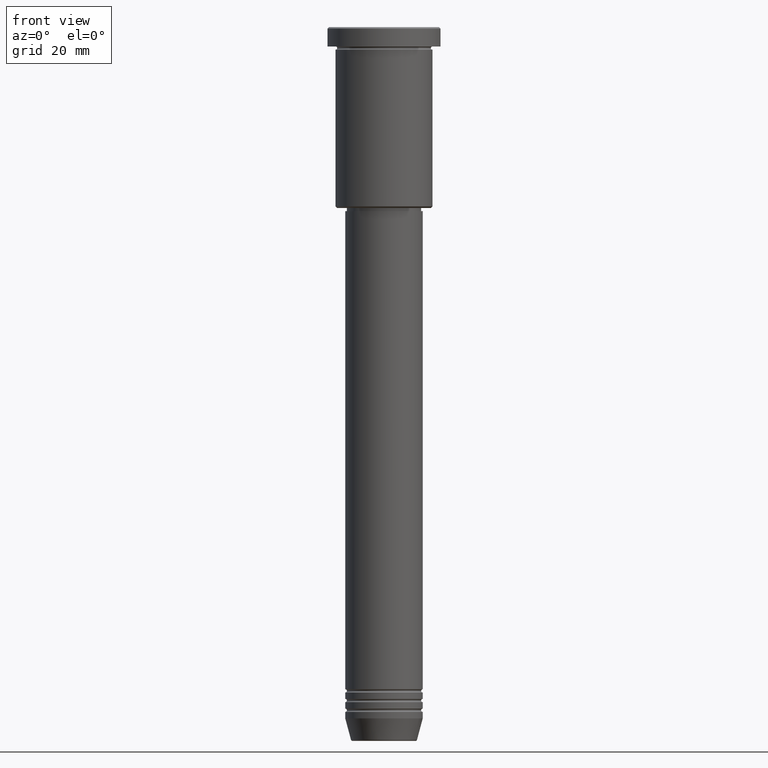
[diagram: clean part render]
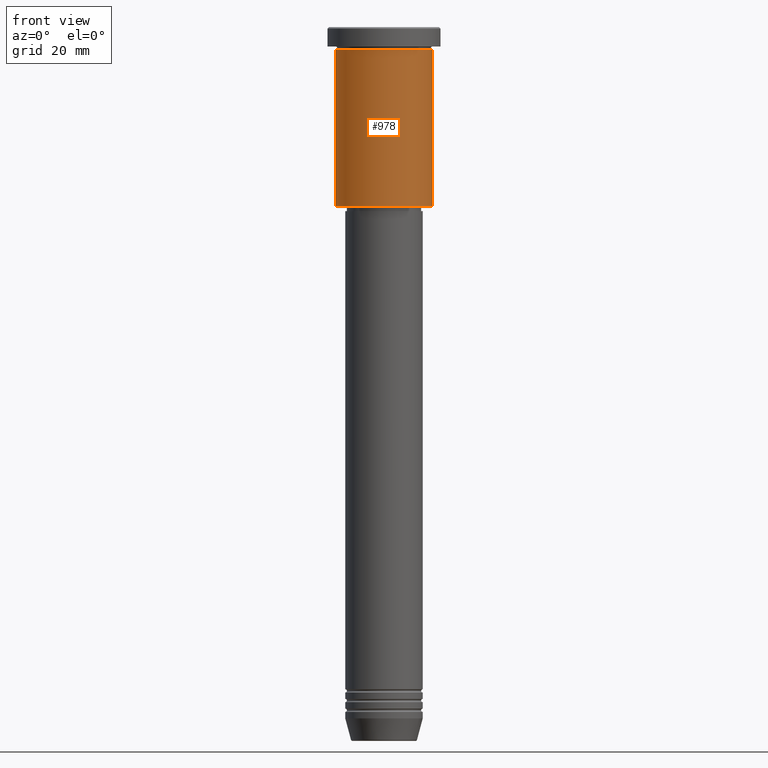
[diagram: same view with one face highlighted and labeled with its STEP entity id]
A machine part, front view. The second image highlights one B-rep face of the part: STEP entity #978.
In plain terms, the highlighted cylindrical surface (partial cylindrical patch) has radius 15 mm, axis along (-0, -0, 1).
Its self-contained STEP definition (entity closure, byte-faithful):
#2 = EDGE_LOOP ( 'NONE', ( #1108, #4, #989, #482 ) ) ;
#4 = ORIENTED_EDGE ( 'NONE', *, *, #1025, .T. ) ;
#18 = VERTEX_POINT ( 'NONE', #687 ) ;
#22 = CARTESIAN_POINT ( 'NONE',  ( -15.00000000000000000, 1.836970198721029589E-15, -6.999999999999995559 ) ) ;
#92 = AXIS2_PLACEMENT_3D ( 'NONE', #1014, #1106, #460 ) ;
#118 = CARTESIAN_POINT ( 'NONE',  ( 0.000000000000000000, 0.000000000000000000, -6.999999999999995559 ) ) ;
#257 = VECTOR ( 'NONE', #696, 1000.000000000000000 ) ;
#332 = CARTESIAN_POINT ( 'NONE',  ( 15.00000000000000000, 0.000000000000000000, 0.000000000000000000 ) ) ;
#364 = VECTOR ( 'NONE', #631, 1000.000000000000000 ) ;
#460 = DIRECTION ( 'NONE',  ( -1.000000000000000000, 0.000000000000000000, 0.000000000000000000 ) ) ;
#470 = CIRCLE ( 'NONE', #92, 15.00000000000000000 ) ;
#471 = EDGE_CURVE ( 'NONE', #18, #1107, #994, .T. ) ;
#480 = DIRECTION ( 'NONE',  ( -0.000000000000000000, -0.000000000000000000, 1.000000000000000000 ) ) ;
#482 = ORIENTED_EDGE ( 'NONE', *, *, #652, .F. ) ;
#518 = DIRECTION ( 'NONE',  ( 1.000000000000000000, 0.000000000000000000, 0.000000000000000000 ) ) ;
#547 = AXIS2_PLACEMENT_3D ( 'NONE', #118, #480, #1027 ) ;
#594 = LINE ( 'NONE', #332, #257 ) ;
#604 = CIRCLE ( 'NONE', #547, 15.00000000000000000 ) ;
#631 = DIRECTION ( 'NONE',  ( -0.000000000000000000, -0.000000000000000000, 1.000000000000000000 ) ) ;
#651 = CARTESIAN_POINT ( 'NONE',  ( 15.00000000000000000, 0.000000000000000000, -55.50000000000000711 ) ) ;
#652 = EDGE_CURVE ( 'NONE', #1107, #1153, #604, .T. ) ;
#687 = CARTESIAN_POINT ( 'NONE',  ( -15.00000000000000000, 1.836970198721029589E-15, -55.50000000000000711 ) ) ;
#696 = DIRECTION ( 'NONE',  ( -0.000000000000000000, -0.000000000000000000, 1.000000000000000000 ) ) ;
#702 = CARTESIAN_POINT ( 'NONE',  ( -15.00000000000000000, 1.836970198721029589E-15, 0.000000000000000000 ) ) ;
#713 = CYLINDRICAL_SURFACE ( 'NONE', #1022, 15.00000000000000000 ) ;
#718 = DIRECTION ( 'NONE',  ( -0.000000000000000000, -0.000000000000000000, 1.000000000000000000 ) ) ;
#857 = EDGE_CURVE ( 'NONE', #1033, #1153, #594, .T. ) ;
#978 = ADVANCED_FACE ( 'NONE', ( #1158 ), #713, .T. ) ;
#989 = ORIENTED_EDGE ( 'NONE', *, *, #857, .T. ) ;
#994 = LINE ( 'NONE', #702, #364 ) ;
#1014 = CARTESIAN_POINT ( 'NONE',  ( 0.000000000000000000, 0.000000000000000000, -55.50000000000000711 ) ) ;
#1022 = AXIS2_PLACEMENT_3D ( 'NONE', #1079, #718, #518 ) ;
#1025 = EDGE_CURVE ( 'NONE', #18, #1033, #470, .T. ) ;
#1027 = DIRECTION ( 'NONE',  ( 1.000000000000000000, 0.000000000000000000, 0.000000000000000000 ) ) ;
#1033 = VERTEX_POINT ( 'NONE', #651 ) ;
#1079 = CARTESIAN_POINT ( 'NONE',  ( 0.000000000000000000, 0.000000000000000000, 0.000000000000000000 ) ) ;
#1091 = CARTESIAN_POINT ( 'NONE',  ( 15.00000000000000000, 0.000000000000000000, -6.999999999999995559 ) ) ;
#1106 = DIRECTION ( 'NONE',  ( -0.000000000000000000, -0.000000000000000000, 1.000000000000000000 ) ) ;
#1107 = VERTEX_POINT ( 'NONE', #22 ) ;
#1108 = ORIENTED_EDGE ( 'NONE', *, *, #471, .F. ) ;
#1153 = VERTEX_POINT ( 'NONE', #1091 ) ;
#1158 = FACE_OUTER_BOUND ( 'NONE', #2, .T. ) ;